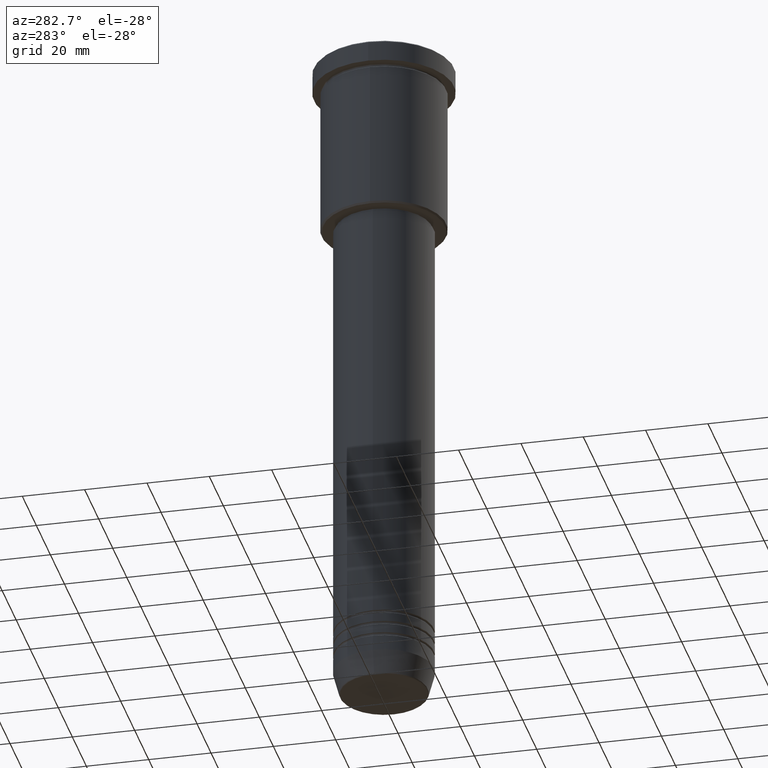
[diagram: clean part render]
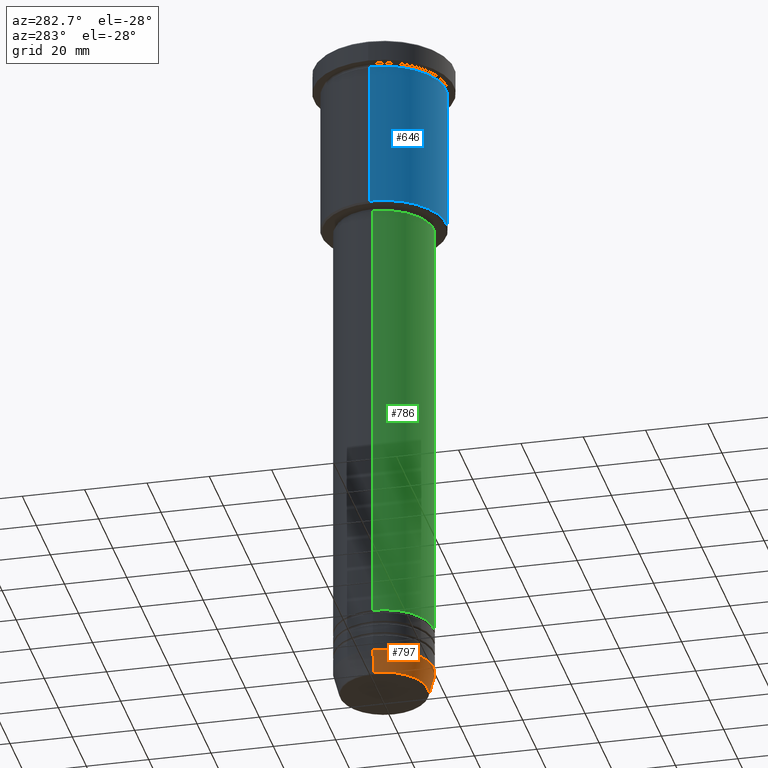
[diagram: same view with three faces highlighted in distinct colors, each labeled with its STEP entity id]
A machine part, auxiliary view with three faces highlighted in distinct colors.
Their STEP definitions:

[orange] entity #797 — the highlighted conical surface has half-angle 15 deg.
#8 = VERTEX_POINT ( 'NONE', #1146 ) ;
#33 = DIRECTION ( 'NONE',  ( 1.000000000000000000, 0.000000000000000000, 0.000000000000000000 ) ) ;
#143 = VECTOR ( 'NONE', #1169, 1000.000000000000000 ) ;
#173 = ORIENTED_EDGE ( 'NONE', *, *, #578, .F. ) ;
#186 = DIRECTION ( 'NONE',  ( -0.000000000000000000, -0.000000000000000000, 1.000000000000000000 ) ) ;
#221 = DIRECTION ( 'NONE',  ( 1.000000000000000000, 0.000000000000000000, 0.000000000000000000 ) ) ;
#266 = CARTESIAN_POINT ( 'NONE',  ( 16.00000000000000000, 0.000000000000000000, -212.5000000000000000 ) ) ;
#272 = EDGE_LOOP ( 'NONE', ( #173, #1116, #664, #959 ) ) ;
#300 = CARTESIAN_POINT ( 'NONE',  ( 0.000000000000000000, 0.000000000000000000, -212.5000000000000000 ) ) ;
#371 = EDGE_CURVE ( 'NONE', #780, #521, #1042, .T. ) ;
#382 = CARTESIAN_POINT ( 'NONE',  ( -16.00000000000000000, 1.959434878635765131E-15, -212.5000000000000000 ) ) ;
#515 = VECTOR ( 'NONE', #1183, 1000.000000000000000 ) ;
#521 = VERTEX_POINT ( 'NONE', #1149 ) ;
#524 = EDGE_CURVE ( 'NONE', #701, #8, #1063, .T. ) ;
#559 = LINE ( 'NONE', #997, #515 ) ;
#578 = EDGE_CURVE ( 'NONE', #701, #780, #559, .T. ) ;
#580 = EDGE_CURVE ( 'NONE', #8, #521, #922, .T. ) ;
#610 = CONICAL_SURFACE ( 'NONE', #769, 16.00000000000000000, 0.2617993877991500740 ) ;
#661 = CARTESIAN_POINT ( 'NONE',  ( -14.08968047592163941, 1.842461544110202058E-15, -219.6294095225512137 ) ) ;
#664 = ORIENTED_EDGE ( 'NONE', *, *, #580, .T. ) ;
#669 = AXIS2_PLACEMENT_3D ( 'NONE', #692, #703, #811 ) ;
#674 = DIRECTION ( 'NONE',  ( -0.000000000000000000, -0.000000000000000000, 1.000000000000000000 ) ) ;
#692 = CARTESIAN_POINT ( 'NONE',  ( 0.000000000000000000, 0.000000000000000000, -219.6294095225512137 ) ) ;
#701 = VERTEX_POINT ( 'NONE', #661 ) ;
#703 = DIRECTION ( 'NONE',  ( -0.000000000000000000, -0.000000000000000000, 1.000000000000000000 ) ) ;
#730 = AXIS2_PLACEMENT_3D ( 'NONE', #1014, #186, #221 ) ;
#769 = AXIS2_PLACEMENT_3D ( 'NONE', #300, #674, #33 ) ;
#780 = VERTEX_POINT ( 'NONE', #382 ) ;
#797 = ADVANCED_FACE ( 'NONE', ( #1118 ), #610, .T. ) ;
#811 = DIRECTION ( 'NONE',  ( 1.000000000000000000, 0.000000000000000000, 0.000000000000000000 ) ) ;
#922 = LINE ( 'NONE', #266, #143 ) ;
#959 = ORIENTED_EDGE ( 'NONE', *, *, #371, .F. ) ;
#997 = CARTESIAN_POINT ( 'NONE',  ( -16.00000000000000000, 1.959434878635765131E-15, -212.5000000000000000 ) ) ;
#1014 = CARTESIAN_POINT ( 'NONE',  ( 0.000000000000000000, 0.000000000000000000, -212.5000000000000000 ) ) ;
#1042 = CIRCLE ( 'NONE', #730, 16.00000000000000000 ) ;
#1063 = CIRCLE ( 'NONE', #669, 14.08968047592163941 ) ;
#1116 = ORIENTED_EDGE ( 'NONE', *, *, #524, .T. ) ;
#1118 = FACE_OUTER_BOUND ( 'NONE', #272, .T. ) ;
#1146 = CARTESIAN_POINT ( 'NONE',  ( 14.08968047592163941, 0.000000000000000000, -219.6294095225512137 ) ) ;
#1149 = CARTESIAN_POINT ( 'NONE',  ( 16.00000000000000000, 0.000000000000000000, -212.5000000000000000 ) ) ;
#1169 = DIRECTION ( 'NONE',  ( 0.2588190451025213501, 0.000000000000000000, 0.9659258262890680902 ) ) ;
#1183 = DIRECTION ( 'NONE',  ( -0.2588190451025213501, 3.169619151431772337E-17, 0.9659258262890680902 ) ) ;

[blue] entity #646 — the highlighted cylindrical surface (partial cylindrical patch) has radius 20 mm, axis along (-0, -0, 1).
#41 = CARTESIAN_POINT ( 'NONE',  ( 20.00000000000000355, 0.000000000000000000, 0.000000000000000000 ) ) ;
#45 = VERTEX_POINT ( 'NONE', #422 ) ;
#54 = CIRCLE ( 'NONE', #731, 20.00000000000000355 ) ;
#61 = CARTESIAN_POINT ( 'NONE',  ( 0.000000000000000000, 0.000000000000000000, -7.999999999999994671 ) ) ;
#183 = CIRCLE ( 'NONE', #415, 20.00000000000000000 ) ;
#209 = DIRECTION ( 'NONE',  ( -0.000000000000000000, -0.000000000000000000, 1.000000000000000000 ) ) ;
#309 = DIRECTION ( 'NONE',  ( -0.000000000000000000, -0.000000000000000000, 1.000000000000000000 ) ) ;
#331 = VERTEX_POINT ( 'NONE', #377 ) ;
#364 = EDGE_CURVE ( 'NONE', #331, #619, #565, .T. ) ;
#377 = CARTESIAN_POINT ( 'NONE',  ( -20.00000000000000355, 2.449293598294706907E-15, -55.49999999999997158 ) ) ;
#415 = AXIS2_PLACEMENT_3D ( 'NONE', #61, #504, #895 ) ;
#422 = CARTESIAN_POINT ( 'NONE',  ( 20.00000000000000000, 0.000000000000000000, -7.999999999999994671 ) ) ;
#431 = VERTEX_POINT ( 'NONE', #873 ) ;
#471 = ORIENTED_EDGE ( 'NONE', *, *, #775, .T. ) ;
#487 = DIRECTION ( 'NONE',  ( -1.000000000000000000, 0.000000000000000000, 0.000000000000000000 ) ) ;
#504 = DIRECTION ( 'NONE',  ( -0.000000000000000000, -0.000000000000000000, 1.000000000000000000 ) ) ;
#565 = LINE ( 'NONE', #778, #686 ) ;
#585 = LINE ( 'NONE', #41, #1179 ) ;
#619 = VERTEX_POINT ( 'NONE', #723 ) ;
#640 = DIRECTION ( 'NONE',  ( -0.000000000000000000, -0.000000000000000000, 1.000000000000000000 ) ) ;
#646 = ADVANCED_FACE ( 'NONE', ( #1088 ), #833, .T. ) ;
#656 = CARTESIAN_POINT ( 'NONE',  ( 0.000000000000000000, 0.000000000000000000, 0.000000000000000000 ) ) ;
#686 = VECTOR ( 'NONE', #309, 1000.000000000000000 ) ;
#723 = CARTESIAN_POINT ( 'NONE',  ( -20.00000000000000000, 2.449293598294706513E-15, -7.999999999999994671 ) ) ;
#731 = AXIS2_PLACEMENT_3D ( 'NONE', #1027, #1033, #487 ) ;
#741 = EDGE_CURVE ( 'NONE', #431, #45, #585, .T. ) ;
#775 = EDGE_CURVE ( 'NONE', #331, #431, #54, .T. ) ;
#778 = CARTESIAN_POINT ( 'NONE',  ( -20.00000000000000355, 2.449293598294706907E-15, 0.000000000000000000 ) ) ;
#794 = EDGE_LOOP ( 'NONE', ( #1172, #471, #836, #1123 ) ) ;
#833 = CYLINDRICAL_SURFACE ( 'NONE', #1103, 20.00000000000000355 ) ;
#836 = ORIENTED_EDGE ( 'NONE', *, *, #741, .T. ) ;
#873 = CARTESIAN_POINT ( 'NONE',  ( 20.00000000000000355, 0.000000000000000000, -55.49999999999997158 ) ) ;
#895 = DIRECTION ( 'NONE',  ( 1.000000000000000000, 0.000000000000000000, 0.000000000000000000 ) ) ;
#1012 = DIRECTION ( 'NONE',  ( 1.000000000000000000, 0.000000000000000000, 0.000000000000000000 ) ) ;
#1027 = CARTESIAN_POINT ( 'NONE',  ( 0.000000000000000000, 0.000000000000000000, -55.49999999999997158 ) ) ;
#1033 = DIRECTION ( 'NONE',  ( -0.000000000000000000, -0.000000000000000000, 1.000000000000000000 ) ) ;
#1088 = FACE_OUTER_BOUND ( 'NONE', #794, .T. ) ;
#1103 = AXIS2_PLACEMENT_3D ( 'NONE', #656, #640, #1012 ) ;
#1122 = EDGE_CURVE ( 'NONE', #619, #45, #183, .T. ) ;
#1123 = ORIENTED_EDGE ( 'NONE', *, *, #1122, .F. ) ;
#1172 = ORIENTED_EDGE ( 'NONE', *, *, #364, .F. ) ;
#1179 = VECTOR ( 'NONE', #209, 1000.000000000000000 ) ;

[green] entity #786 — the highlighted cylindrical surface (partial cylindrical patch) has radius 16 mm, axis along (-0, -0, 1).
#7 = EDGE_CURVE ( 'NONE', #1113, #1037, #520, .T. ) ;
#15 = CIRCLE ( 'NONE', #201, 16.00000000000000000 ) ;
#62 = CARTESIAN_POINT ( 'NONE',  ( 16.00000000000000000, 0.000000000000000000, 0.000000000000000000 ) ) ;
#78 = DIRECTION ( 'NONE',  ( 1.000000000000000000, 0.000000000000000000, 0.000000000000000000 ) ) ;
#114 = DIRECTION ( 'NONE',  ( 1.000000000000000000, 0.000000000000000000, 0.000000000000000000 ) ) ;
#115 = ORIENTED_EDGE ( 'NONE', *, *, #765, .F. ) ;
#117 = ORIENTED_EDGE ( 'NONE', *, *, #7, .T. ) ;
#201 = AXIS2_PLACEMENT_3D ( 'NONE', #294, #581, #758 ) ;
#204 = FACE_OUTER_BOUND ( 'NONE', #528, .T. ) ;
#205 = EDGE_CURVE ( 'NONE', #696, #1113, #947, .T. ) ;
#259 = DIRECTION ( 'NONE',  ( -0.000000000000000000, -0.000000000000000000, 1.000000000000000000 ) ) ;
#270 = LINE ( 'NONE', #648, #768 ) ;
#294 = CARTESIAN_POINT ( 'NONE',  ( 0.000000000000000000, 0.000000000000000000, -57.00000000000002842 ) ) ;
#311 = DIRECTION ( 'NONE',  ( -0.000000000000000000, -0.000000000000000000, 1.000000000000000000 ) ) ;
#390 = CARTESIAN_POINT ( 'NONE',  ( -16.00000000000000000, 1.959434878635765131E-15, -57.00000000000002842 ) ) ;
#446 = DIRECTION ( 'NONE',  ( -0.000000000000000000, -0.000000000000000000, 1.000000000000000000 ) ) ;
#497 = CARTESIAN_POINT ( 'NONE',  ( -16.00000000000000000, 1.959434878635765131E-15, -198.4999999999999716 ) ) ;
#511 = AXIS2_PLACEMENT_3D ( 'NONE', #911, #446, #78 ) ;
#520 = LINE ( 'NONE', #62, #803 ) ;
#528 = EDGE_LOOP ( 'NONE', ( #1151, #937, #117, #115 ) ) ;
#577 = CARTESIAN_POINT ( 'NONE',  ( 0.000000000000000000, 0.000000000000000000, 0.000000000000000000 ) ) ;
#581 = DIRECTION ( 'NONE',  ( -0.000000000000000000, -0.000000000000000000, 1.000000000000000000 ) ) ;
#633 = CARTESIAN_POINT ( 'NONE',  ( 16.00000000000000000, 0.000000000000000000, -57.00000000000002842 ) ) ;
#645 = EDGE_CURVE ( 'NONE', #696, #789, #270, .T. ) ;
#648 = CARTESIAN_POINT ( 'NONE',  ( -16.00000000000000000, 1.959434878635765131E-15, 0.000000000000000000 ) ) ;
#696 = VERTEX_POINT ( 'NONE', #497 ) ;
#758 = DIRECTION ( 'NONE',  ( 1.000000000000000000, 0.000000000000000000, 0.000000000000000000 ) ) ;
#765 = EDGE_CURVE ( 'NONE', #789, #1037, #15, .T. ) ;
#768 = VECTOR ( 'NONE', #259, 1000.000000000000000 ) ;
#777 = DIRECTION ( 'NONE',  ( -0.000000000000000000, -0.000000000000000000, 1.000000000000000000 ) ) ;
#786 = ADVANCED_FACE ( 'NONE', ( #204 ), #857, .T. ) ;
#789 = VERTEX_POINT ( 'NONE', #390 ) ;
#803 = VECTOR ( 'NONE', #311, 1000.000000000000000 ) ;
#804 = CARTESIAN_POINT ( 'NONE',  ( 16.00000000000000000, 0.000000000000000000, -198.4999999999999716 ) ) ;
#857 = CYLINDRICAL_SURFACE ( 'NONE', #1084, 16.00000000000000000 ) ;
#911 = CARTESIAN_POINT ( 'NONE',  ( 0.000000000000000000, 0.000000000000000000, -198.4999999999999716 ) ) ;
#937 = ORIENTED_EDGE ( 'NONE', *, *, #205, .T. ) ;
#947 = CIRCLE ( 'NONE', #511, 16.00000000000000000 ) ;
#1037 = VERTEX_POINT ( 'NONE', #633 ) ;
#1084 = AXIS2_PLACEMENT_3D ( 'NONE', #577, #777, #114 ) ;
#1113 = VERTEX_POINT ( 'NONE', #804 ) ;
#1151 = ORIENTED_EDGE ( 'NONE', *, *, #645, .F. ) ;